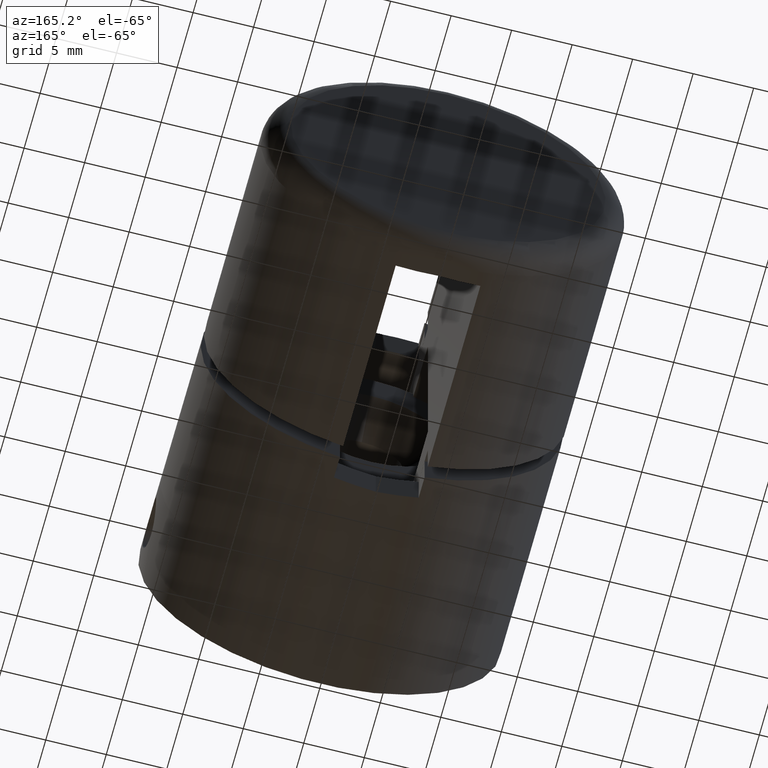
[diagram: clean part render]
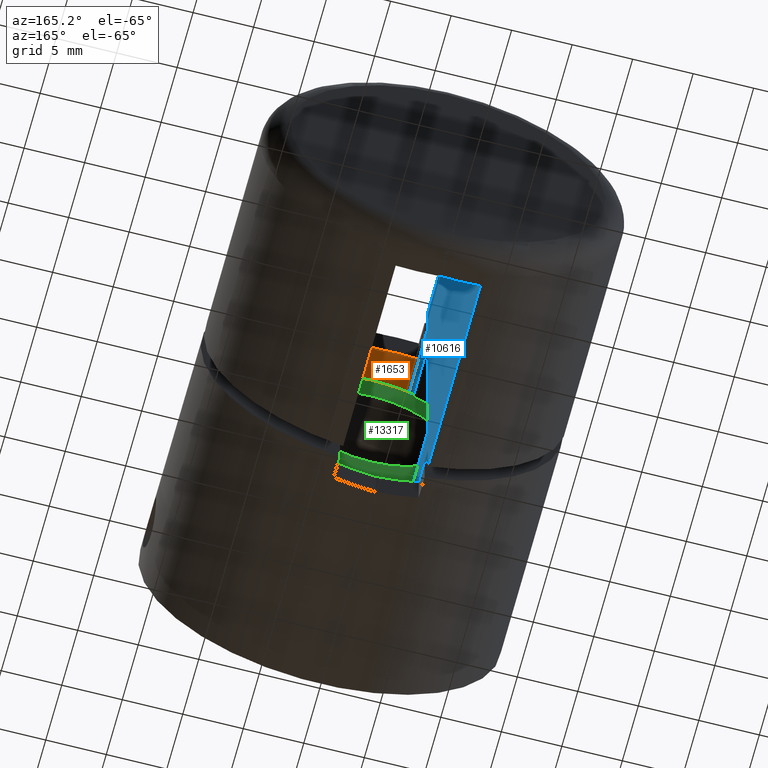
[diagram: same view with three faces highlighted in distinct colors, each labeled with its STEP entity id]
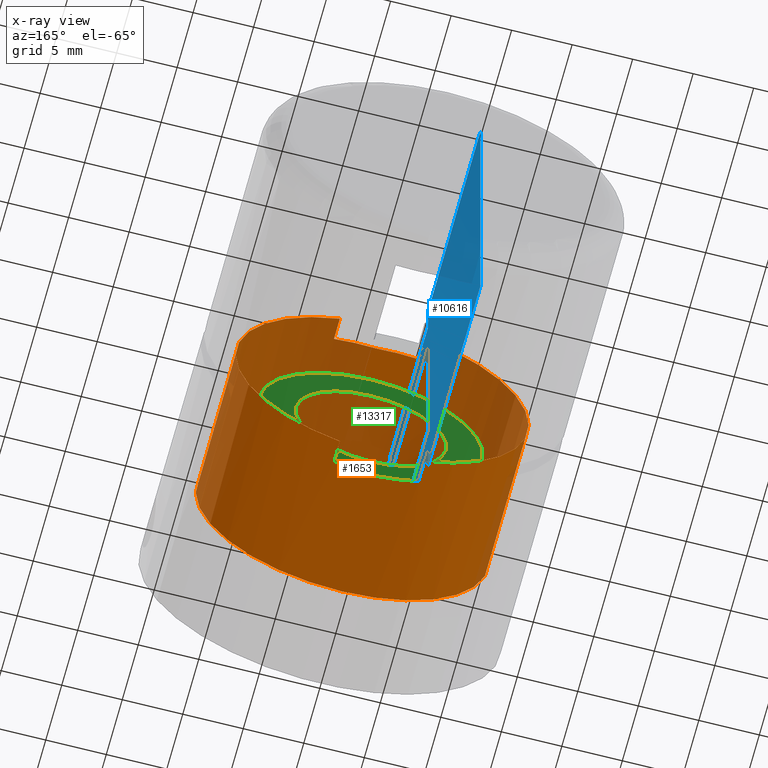
[diagram: x-ray of the same camera — body ghosted, the three highlighted faces saturated]
A machine part, auxiliary view with three faces highlighted in distinct colors.
The next image is the same camera in x-ray (body ghosted, the three faces saturated) — at least one of them is partly hidden behind the body in this view.
Their STEP definitions:

[orange] entity #1653 — the highlighted cylindrical surface (bore or boss wall) has radius 12.1 mm, axis along (0, 1, 0).
#14 = VERTEX_POINT ( 'NONE', #15678 ) ;
#166 = DIRECTION ( 'NONE',  ( -0.0000000000000000000, 1.000000000000000000, -0.0000000000000000000 ) ) ;
#210 = CARTESIAN_POINT ( 'NONE',  ( 3.500000000000036900, 1.846572772509342400, -11.58274578845627700 ) ) ;
#347 =( BOUNDED_CURVE ( )  B_SPLINE_CURVE ( 3, ( #3178, #6078, #3403, #2149 ),
 .UNSPECIFIED., .F., .F. ) 
 B_SPLINE_CURVE_WITH_KNOTS ( ( 4, 4 ),
 ( 4.712388980384689700, 5.005838708984176900 ),
 .UNSPECIFIED. ) 
 CURVE ( )  GEOMETRIC_REPRESENTATION_ITEM ( )  RATIONAL_B_SPLINE_CURVE ( ( 1.000000000000000000, 0.9928368027967422500, 0.9928368027967422500, 1.000000000000000000 ) ) 
 REPRESENTATION_ITEM ( '' )  );
#572 = LINE ( 'NONE', #15662, #9250 ) ;
#675 = ORIENTED_EDGE ( 'NONE', *, *, #2437, .F. ) ;
#874 = AXIS2_PLACEMENT_3D ( 'NONE', #15798, #2987, #10753 ) ;
#905 = CARTESIAN_POINT ( 'NONE',  ( 1.155557966632341500E-030, 2.029999999999997100, 12.10000000000014200 ) ) ;
#938 = DIRECTION ( 'NONE',  ( -7.395570986446916700E-032, 0.0000000000000000000, -1.000000000000000000 ) ) ;
#1343 = EDGE_CURVE ( 'NONE', #2490, #13560, #1385, .T. ) ;
#1385 =( BOUNDED_CURVE ( )  B_SPLINE_CURVE ( 3, ( #8759, #6071, #15063, #2355 ),
 .UNSPECIFIED., .F., .F. ) 
 B_SPLINE_CURVE_WITH_KNOTS ( ( 4, 4 ),
 ( 1.277346598195409500, 1.570796326794896600 ),
 .UNSPECIFIED. ) 
 CURVE ( )  GEOMETRIC_REPRESENTATION_ITEM ( )  RATIONAL_B_SPLINE_CURVE ( ( 1.000000000000000000, 0.9928368027967424700, 0.9928368027967424700, 1.000000000000000000 ) ) 
 REPRESENTATION_ITEM ( '' )  );
#1424 = CARTESIAN_POINT ( 'NONE',  ( -1.540743955509788700E-030, 2.029999999999997100, -12.10000000000015100 ) ) ;
#1561 = DIRECTION ( 'NONE',  ( 0.0000000000000000000, 1.000000000000000000, 0.0000000000000000000 ) ) ;
#1616 = ORIENTED_EDGE ( 'NONE', *, *, #10353, .F. ) ;
#1653 = ADVANCED_FACE ( 'NONE', ( #14460, #2341 ), #9031, .F. ) ;
#1793 = VERTEX_POINT ( 'NONE', #10190 ) ;
#1832 = ORIENTED_EDGE ( 'NONE', *, *, #4961, .F. ) ;
#2149 = CARTESIAN_POINT ( 'NONE',  ( -3.500000000000036900, 1.846572772509342400, -11.58274578845628300 ) ) ;
#2337 = VERTEX_POINT ( 'NONE', #12617 ) ;
#2341 = FACE_OUTER_BOUND ( 'NONE', #4540, .T. ) ;
#2355 = CARTESIAN_POINT ( 'NONE',  ( 1.155557966632341500E-030, 2.029999999999997100, 12.10000000000014200 ) ) ;
#2437 = EDGE_CURVE ( 'NONE', #2606, #1793, #14894, .T. ) ;
#2446 = ORIENTED_EDGE ( 'NONE', *, *, #15551, .F. ) ;
#2490 = VERTEX_POINT ( 'NONE', #16601 ) ;
#2606 = VERTEX_POINT ( 'NONE', #2659 ) ;
#2659 = CARTESIAN_POINT ( 'NONE',  ( -3.500000000000036900, 1.846572772509342400, -11.58274578845628300 ) ) ;
#2772 = VERTEX_POINT ( 'NONE', #13632 ) ;
#2850 = CARTESIAN_POINT ( 'NONE',  ( 1.187847200891070300, 1.967747566073715800, -12.10000000000011200 ) ) ;
#2987 = DIRECTION ( 'NONE',  ( 0.0000000000000000000, 1.000000000000000000, 0.0000000000000000000 ) ) ;
#3085 = LINE ( 'NONE', #15023, #6956 ) ;
#3178 = CARTESIAN_POINT ( 'NONE',  ( -1.540743955509788700E-030, 2.029999999999997100, -12.10000000000015100 ) ) ;
#3403 = CARTESIAN_POINT ( 'NONE',  ( -2.362931226161160600, 1.906164021838329300, -11.92633795400331400 ) ) ;
#3875 =( BOUNDED_CURVE ( )  B_SPLINE_CURVE ( 3, ( #905, #15059, #15114, #8597 ),
 .UNSPECIFIED., .F., .F. ) 
 B_SPLINE_CURVE_WITH_KNOTS ( ( 4, 4 ),
 ( 4.712388980384689700, 5.005838708984176900 ),
 .UNSPECIFIED. ) 
 CURVE ( )  GEOMETRIC_REPRESENTATION_ITEM ( )  RATIONAL_B_SPLINE_CURVE ( ( 1.000000000000000000, 0.9928368027967422500, 0.9928368027967422500, 1.000000000000000000 ) ) 
 REPRESENTATION_ITEM ( '' )  );
#4012 = CIRCLE ( 'NONE', #5203, 12.10000000000011200 ) ;
#4019 = ORIENTED_EDGE ( 'NONE', *, *, #10012, .T. ) ;
#4143 = EDGE_CURVE ( 'NONE', #13560, #14, #3875, .T. ) ;
#4540 = EDGE_LOOP ( 'NONE', ( #4019 ) ) ;
#4934 = CARTESIAN_POINT ( 'NONE',  ( -1.540743955509788700E-030, 2.029999999999997100, -12.10000000000015100 ) ) ;
#4961 = EDGE_CURVE ( 'NONE', #12112, #16475, #15717, .T. ) ;
#5203 = AXIS2_PLACEMENT_3D ( 'NONE', #6887, #15887, #13316 ) ;
#5282 = CARTESIAN_POINT ( 'NONE',  ( 8.948640893600852000E-031, 12.52999999999999900, 12.10000000000011200 ) ) ;
#5338 = EDGE_LOOP ( 'NONE', ( #14057, #6490, #675, #13604, #2446, #1832, #1616, #16508, #9168, #5528 ) ) ;
#5512 = DIRECTION ( 'NONE',  ( -0.0000000000000000000, 1.000000000000000000, -0.0000000000000000000 ) ) ;
#5528 = ORIENTED_EDGE ( 'NONE', *, *, #1343, .F. ) ;
#5832 = CIRCLE ( 'NONE', #15668, 12.10000000000011200 ) ;
#6029 = DIRECTION ( 'NONE',  ( 0.0000000000000000000, -1.000000000000000000, 0.0000000000000000000 ) ) ;
#6071 = CARTESIAN_POINT ( 'NONE',  ( -2.362931226161162400, 1.906164021838329300, 11.92633795400331400 ) ) ;
#6078 = CARTESIAN_POINT ( 'NONE',  ( -1.187847200891069400, 1.967747566073715800, -12.10000000000011200 ) ) ;
#6490 = ORIENTED_EDGE ( 'NONE', *, *, #6613, .F. ) ;
#6613 = EDGE_CURVE ( 'NONE', #1793, #2337, #5832, .T. ) ;
#6887 = CARTESIAN_POINT ( 'NONE',  ( 0.0000000000000000000, 0.0000000000000000000, 0.0000000000000000000 ) ) ;
#6956 = VECTOR ( 'NONE', #8814, 1000.000000000000000 ) ;
#8037 = CARTESIAN_POINT ( 'NONE',  ( 0.0000000000000000000, 0.0000000000000000000, 0.0000000000000000000 ) ) ;
#8063 = CARTESIAN_POINT ( 'NONE',  ( 3.500000000000039500, 12.52999999999999900, -11.58274578845627700 ) ) ;
#8597 = CARTESIAN_POINT ( 'NONE',  ( 3.500000000000039500, 1.846572772509342400, 11.58274578845627700 ) ) ;
#8759 = CARTESIAN_POINT ( 'NONE',  ( -3.500000000000036900, 1.846572772509342400, 11.58274578845627400 ) ) ;
#8814 = DIRECTION ( 'NONE',  ( 0.0000000000000000000, -1.000000000000000000, 0.0000000000000000000 ) ) ;
#9031 = CYLINDRICAL_SURFACE ( 'NONE', #16303, 12.10000000000011200 ) ;
#9129 = EDGE_CURVE ( 'NONE', #15803, #2606, #347, .T. ) ;
#9168 = ORIENTED_EDGE ( 'NONE', *, *, #4143, .F. ) ;
#9250 = VECTOR ( 'NONE', #166, 1000.000000000000000 ) ;
#9258 = DIRECTION ( 'NONE',  ( 7.395570986446916700E-032, 0.0000000000000000000, 1.000000000000000000 ) ) ;
#9291 = CARTESIAN_POINT ( 'NONE',  ( 2.362931226161159700, 1.906164021838329300, -11.92633795400331600 ) ) ;
#9437 = VECTOR ( 'NONE', #6029, 1000.000000000000000 ) ;
#9767 = DIRECTION ( 'NONE',  ( 0.0000000000000000000, -1.000000000000000000, 0.0000000000000000000 ) ) ;
#10012 = EDGE_CURVE ( 'NONE', #15786, #15786, #15112, .T. ) ;
#10190 = CARTESIAN_POINT ( 'NONE',  ( -3.500000000000036400, 0.0000000000000000000, -11.58274578845627700 ) ) ;
#10353 = EDGE_CURVE ( 'NONE', #2772, #12112, #4012, .T. ) ;
#10381 =( BOUNDED_CURVE ( )  B_SPLINE_CURVE ( 3, ( #210, #9291, #2850, #1424 ),
 .UNSPECIFIED., .F., .T. ) 
 B_SPLINE_CURVE_WITH_KNOTS ( ( 4, 4 ),
 ( 1.277346598195409700, 1.570796326794896600 ),
 .UNSPECIFIED. ) 
 CURVE ( )  GEOMETRIC_REPRESENTATION_ITEM ( )  RATIONAL_B_SPLINE_CURVE ( ( 1.000000000000000000, 0.9928368027967424700, 0.9928368027967424700, 1.000000000000000000 ) ) 
 REPRESENTATION_ITEM ( '' )  );
#10753 = DIRECTION ( 'NONE',  ( 7.395570986446916700E-032, 0.0000000000000000000, 1.000000000000000000 ) ) ;
#11663 = VECTOR ( 'NONE', #5512, 1000.000000000000000 ) ;
#12078 = CARTESIAN_POINT ( 'NONE',  ( 3.500000000000036900, 1.846572772509342400, -11.58274578845627700 ) ) ;
#12112 = VERTEX_POINT ( 'NONE', #14596 ) ;
#12617 = CARTESIAN_POINT ( 'NONE',  ( -3.500000000000036400, 0.0000000000000000000, 11.58274578845627700 ) ) ;
#12740 = CARTESIAN_POINT ( 'NONE',  ( 1.155557966632341500E-030, 2.029999999999997100, 12.10000000000014200 ) ) ;
#13316 = DIRECTION ( 'NONE',  ( 7.395570986446916700E-032, 0.0000000000000000000, 1.000000000000000000 ) ) ;
#13560 = VERTEX_POINT ( 'NONE', #12740 ) ;
#13604 = ORIENTED_EDGE ( 'NONE', *, *, #9129, .F. ) ;
#13632 = CARTESIAN_POINT ( 'NONE',  ( 3.500000000000036400, 0.0000000000000000000, 11.58274578845627700 ) ) ;
#13878 = CARTESIAN_POINT ( 'NONE',  ( -3.500000000000039500, 12.52999999999999900, -11.58274578845627700 ) ) ;
#14057 = ORIENTED_EDGE ( 'NONE', *, *, #15171, .F. ) ;
#14460 = FACE_OUTER_BOUND ( 'NONE', #5338, .T. ) ;
#14596 = CARTESIAN_POINT ( 'NONE',  ( 3.500000000000039500, 0.0000000000000000000, -11.58274578845627700 ) ) ;
#14829 = CARTESIAN_POINT ( 'NONE',  ( 0.0000000000000000000, 12.52999999999999900, 0.0000000000000000000 ) ) ;
#14894 = LINE ( 'NONE', #13878, #9437 ) ;
#15023 = CARTESIAN_POINT ( 'NONE',  ( 3.500000000000039500, 12.52999999999999900, 11.58274578845627700 ) ) ;
#15059 = CARTESIAN_POINT ( 'NONE',  ( 1.187847200891069400, 1.967747566073715800, 12.10000000000011200 ) ) ;
#15063 = CARTESIAN_POINT ( 'NONE',  ( -1.187847200891071000, 1.967747566073715800, 12.10000000000011200 ) ) ;
#15112 = CIRCLE ( 'NONE', #874, 12.10000000000011200 ) ;
#15114 = CARTESIAN_POINT ( 'NONE',  ( 2.362931226161160600, 1.906164021838329300, 11.92633795400331400 ) ) ;
#15171 = EDGE_CURVE ( 'NONE', #2337, #2490, #572, .T. ) ;
#15551 = EDGE_CURVE ( 'NONE', #16475, #15803, #10381, .T. ) ;
#15662 = CARTESIAN_POINT ( 'NONE',  ( -3.500000000000039500, 12.52999999999999900, 11.58274578845627700 ) ) ;
#15668 = AXIS2_PLACEMENT_3D ( 'NONE', #8037, #1561, #9258 ) ;
#15678 = CARTESIAN_POINT ( 'NONE',  ( 3.500000000000039500, 1.846572772509342400, 11.58274578845627700 ) ) ;
#15717 = LINE ( 'NONE', #8063, #11663 ) ;
#15778 = EDGE_CURVE ( 'NONE', #14, #2772, #3085, .T. ) ;
#15786 = VERTEX_POINT ( 'NONE', #5282 ) ;
#15798 = CARTESIAN_POINT ( 'NONE',  ( 0.0000000000000000000, 12.52999999999999900, 0.0000000000000000000 ) ) ;
#15803 = VERTEX_POINT ( 'NONE', #4934 ) ;
#15887 = DIRECTION ( 'NONE',  ( 0.0000000000000000000, 1.000000000000000000, 0.0000000000000000000 ) ) ;
#16303 = AXIS2_PLACEMENT_3D ( 'NONE', #14829, #9767, #938 ) ;
#16475 = VERTEX_POINT ( 'NONE', #12078 ) ;
#16508 = ORIENTED_EDGE ( 'NONE', *, *, #15778, .F. ) ;
#16601 = CARTESIAN_POINT ( 'NONE',  ( -3.500000000000036900, 1.846572772509342400, 11.58274578845627400 ) ) ;

[blue] entity #10616 — the highlighted planar face has unit normal (-1, 0, -0).
#16 = DIRECTION ( 'NONE',  ( 1.228762462150238500E-016, 0.0000000000000000000, 1.000000000000000000 ) ) ;
#426 = DIRECTION ( 'NONE',  ( -0.0000000000000000000, 1.000000000000000000, -0.0000000000000000000 ) ) ;
#550 = LINE ( 'NONE', #11666, #3751 ) ;
#614 = ORIENTED_EDGE ( 'NONE', *, *, #14627, .T. ) ;
#728 = EDGE_CURVE ( 'NONE', #10503, #2664, #8458, .T. ) ;
#789 = FACE_OUTER_BOUND ( 'NONE', #15259, .T. ) ;
#850 = DIRECTION ( 'NONE',  ( 0.0000000000000000000, 1.000000000000000000, 0.0000000000000000000 ) ) ;
#957 = LINE ( 'NONE', #13611, #11056 ) ;
#1109 = ORIENTED_EDGE ( 'NONE', *, *, #1569, .T. ) ;
#1514 = CARTESIAN_POINT ( 'NONE',  ( -3.500000000000003100, -39.25695324215582400, -29.99999999999998900 ) ) ;
#1532 = VERTEX_POINT ( 'NONE', #1618 ) ;
#1556 = LINE ( 'NONE', #11529, #2365 ) ;
#1569 = EDGE_CURVE ( 'NONE', #2895, #14065, #7033, .T. ) ;
#1579 = CARTESIAN_POINT ( 'NONE',  ( -3.500000000000000900, 33.68000000000000000, -11.53050302458656700 ) ) ;
#1592 = VERTEX_POINT ( 'NONE', #5652 ) ;
#1618 = CARTESIAN_POINT ( 'NONE',  ( -3.500000000000000400, 21.14999999999999900, -8.019507466172722600 ) ) ;
#1665 = ORIENTED_EDGE ( 'NONE', *, *, #2963, .F. ) ;
#1723 = CARTESIAN_POINT ( 'NONE',  ( -3.499999999999998700, 21.14999999999999900, 14.58595214581482000 ) ) ;
#1981 = LINE ( 'NONE', #13319, #11854 ) ;
#2058 = DIRECTION ( 'NONE',  ( 0.0000000000000000000, 1.000000000000000000, 0.0000000000000000000 ) ) ;
#2304 = EDGE_CURVE ( 'NONE', #12154, #14065, #9007, .T. ) ;
#2365 = VECTOR ( 'NONE', #7617, 1000.000000000000000 ) ;
#2664 = VERTEX_POINT ( 'NONE', #9598 ) ;
#2872 = EDGE_CURVE ( 'NONE', #9395, #1532, #3977, .T. ) ;
#2895 = VERTEX_POINT ( 'NONE', #11591 ) ;
#2963 = EDGE_CURVE ( 'NONE', #15233, #1532, #550, .T. ) ;
#2973 = LINE ( 'NONE', #8112, #16113 ) ;
#3400 = CARTESIAN_POINT ( 'NONE',  ( -3.499999999999999600, 33.68000000000000000, 4.300668617525834600E-016 ) ) ;
#3751 = VECTOR ( 'NONE', #9036, 1000.000000000000000 ) ;
#3977 = LINE ( 'NONE', #8752, #8824 ) ;
#4015 = LINE ( 'NONE', #9756, #9269 ) ;
#4120 = DIRECTION ( 'NONE',  ( -1.000000000000000000, 0.0000000000000000000, 1.228762462150238500E-016 ) ) ;
#4125 = DIRECTION ( 'NONE',  ( -0.0000000000000000000, -1.000000000000000000, -0.0000000000000000000 ) ) ;
#4204 = VECTOR ( 'NONE', #11719, 1000.000000000000000 ) ;
#4415 = CARTESIAN_POINT ( 'NONE',  ( -3.499999999999998700, 21.14999999999999900, 11.53050302458657100 ) ) ;
#4434 = CARTESIAN_POINT ( 'NONE',  ( -3.500000000000001300, 33.01406578003961600, -11.18138619586769300 ) ) ;
#5330 = AXIS2_PLACEMENT_3D ( 'NONE', #1514, #4120, #16 ) ;
#5652 = CARTESIAN_POINT ( 'NONE',  ( -3.499999999999998700, 33.68000000000000000, 8.019507466172722600 ) ) ;
#5819 = LINE ( 'NONE', #7522, #10038 ) ;
#6042 = CARTESIAN_POINT ( 'NONE',  ( -3.500000000000000900, 21.14999999999999900, -11.53050302458656900 ) ) ;
#6122 = CARTESIAN_POINT ( 'NONE',  ( -3.499999999999998200, 33.68000000000000000, 10.48105433627746300 ) ) ;
#6153 = EDGE_CURVE ( 'NONE', #12598, #10070, #1981, .T. ) ;
#6156 = EDGE_CURVE ( 'NONE', #12598, #2664, #957, .T. ) ;
#6436 = CARTESIAN_POINT ( 'NONE',  ( -3.499999999999998700, 21.14999999999999900, 8.019507466172722600 ) ) ;
#7033 = LINE ( 'NONE', #13516, #10031 ) ;
#7372 = CARTESIAN_POINT ( 'NONE',  ( -3.499999999999998200, 32.68000000000002800, 11.53050302458656700 ) ) ;
#7522 = CARTESIAN_POINT ( 'NONE',  ( -3.499999999999998700, 21.14999999999999900, 14.58595214581482000 ) ) ;
#7525 = CARTESIAN_POINT ( 'NONE',  ( -3.500000000000000900, 33.68000000000000000, -10.48105433627746500 ) ) ;
#7617 = DIRECTION ( 'NONE',  ( -0.0000000000000000000, -0.0000000000000000000, 1.000000000000000000 ) ) ;
#7659 = LINE ( 'NONE', #15452, #4204 ) ;
#7723 = B_SPLINE_CURVE_WITH_KNOTS ( 'NONE', 3,
 ( #12130, #4434, #10006, #13425 ),
 .UNSPECIFIED., .F., .F.,
 ( 4, 4 ),
 ( 1.734723475976807100E-018, 0.001449600824155962100 ),
 .UNSPECIFIED. ) ;
#7791 = VECTOR ( 'NONE', #9993, 1000.000000000000000 ) ;
#7851 = DIRECTION ( 'NONE',  ( 0.0000000000000000000, -1.000000000000000000, 0.0000000000000000000 ) ) ;
#8112 = CARTESIAN_POINT ( 'NONE',  ( -3.499999999999998700, -3.598737341529170600, 8.019507466172722600 ) ) ;
#8253 = ORIENTED_EDGE ( 'NONE', *, *, #8802, .T. ) ;
#8263 = CARTESIAN_POINT ( 'NONE',  ( -3.500000000000000900, 32.68000000000002800, -11.53050302458656700 ) ) ;
#8458 = B_SPLINE_CURVE_WITH_KNOTS ( 'NONE', 3,
 ( #6122, #15066, #15121, #7372 ),
 .UNSPECIFIED., .F., .F.,
 ( 4, 4 ),
 ( 1.734723475976807100E-018, 0.001449600824155962100 ),
 .UNSPECIFIED. ) ;
#8610 = ORIENTED_EDGE ( 'NONE', *, *, #6156, .F. ) ;
#8621 = ORIENTED_EDGE ( 'NONE', *, *, #728, .T. ) ;
#8647 = VECTOR ( 'NONE', #4125, 1000.000000000000000 ) ;
#8752 = CARTESIAN_POINT ( 'NONE',  ( -3.500000000000000400, -3.598737341529170600, -8.019507466172722600 ) ) ;
#8786 = CARTESIAN_POINT ( 'NONE',  ( -3.499999999999999600, 4.683427227490657400, -14.58595214581482000 ) ) ;
#8802 = EDGE_CURVE ( 'NONE', #1592, #10503, #11181, .T. ) ;
#8824 = VECTOR ( 'NONE', #7851, 1000.000000000000000 ) ;
#8906 = ORIENTED_EDGE ( 'NONE', *, *, #11183, .T. ) ;
#9007 = LINE ( 'NONE', #1579, #8647 ) ;
#9036 = DIRECTION ( 'NONE',  ( -1.228762462150238500E-016, 0.0000000000000000000, -1.000000000000000000 ) ) ;
#9269 = VECTOR ( 'NONE', #9818, 1000.000000000000000 ) ;
#9395 = VERTEX_POINT ( 'NONE', #11866 ) ;
#9598 = CARTESIAN_POINT ( 'NONE',  ( -3.499999999999998200, 32.68000000000002800, 11.53050302458656700 ) ) ;
#9705 = ORIENTED_EDGE ( 'NONE', *, *, #14028, .F. ) ;
#9756 = CARTESIAN_POINT ( 'NONE',  ( -3.499999999999998700, 21.14999999999999900, -14.58595214581482000 ) ) ;
#9818 = DIRECTION ( 'NONE',  ( -0.0000000000000000000, -1.000000000000000000, -0.0000000000000000000 ) ) ;
#9993 = DIRECTION ( 'NONE',  ( 1.228762462150238500E-016, -0.0000000000000000000, 1.000000000000000000 ) ) ;
#10006 = CARTESIAN_POINT ( 'NONE',  ( -3.500000000000000400, 33.34747042618929000, -10.83163469515321100 ) ) ;
#10031 = VECTOR ( 'NONE', #13393, 1000.000000000000000 ) ;
#10038 = VECTOR ( 'NONE', #850, 1000.000000000000000 ) ;
#10070 = VERTEX_POINT ( 'NONE', #1723 ) ;
#10503 = VERTEX_POINT ( 'NONE', #11174 ) ;
#10616 = ADVANCED_FACE ( 'NONE', ( #789 ), #15695, .F. ) ;
#10882 = ORIENTED_EDGE ( 'NONE', *, *, #11726, .F. ) ;
#11051 = ORIENTED_EDGE ( 'NONE', *, *, #15006, .F. ) ;
#11056 = VECTOR ( 'NONE', #2058, 1000.000000000000000 ) ;
#11174 = CARTESIAN_POINT ( 'NONE',  ( -3.499999999999998200, 33.68000000000000000, 10.48105433627746300 ) ) ;
#11181 = LINE ( 'NONE', #3400, #7791 ) ;
#11183 = EDGE_CURVE ( 'NONE', #15233, #1592, #2973, .T. ) ;
#11425 = VERTEX_POINT ( 'NONE', #7525 ) ;
#11529 = CARTESIAN_POINT ( 'NONE',  ( -3.499999999999999600, 4.683427227490657400, -15.00000000000000000 ) ) ;
#11591 = CARTESIAN_POINT ( 'NONE',  ( -3.499999999999998700, 21.14999999999999900, -14.58595214581482000 ) ) ;
#11666 = CARTESIAN_POINT ( 'NONE',  ( -3.500000000000003100, 21.15000000000000200, -29.99999999999998900 ) ) ;
#11719 = DIRECTION ( 'NONE',  ( 1.228762462150238500E-016, -0.0000000000000000000, 1.000000000000000000 ) ) ;
#11726 = EDGE_CURVE ( 'NONE', #13701, #10070, #5819, .T. ) ;
#11854 = VECTOR ( 'NONE', #16046, 1000.000000000000000 ) ;
#11866 = CARTESIAN_POINT ( 'NONE',  ( -3.500000000000000400, 33.68000000000000000, -8.019507466172722600 ) ) ;
#12130 = CARTESIAN_POINT ( 'NONE',  ( -3.500000000000000900, 32.68000000000002800, -11.53050302458656700 ) ) ;
#12154 = VERTEX_POINT ( 'NONE', #8263 ) ;
#12220 = VERTEX_POINT ( 'NONE', #8786 ) ;
#12465 = ORIENTED_EDGE ( 'NONE', *, *, #2872, .T. ) ;
#12598 = VERTEX_POINT ( 'NONE', #4415 ) ;
#13319 = CARTESIAN_POINT ( 'NONE',  ( -3.499999999999998700, 21.14999999999999900, -15.00000000000000000 ) ) ;
#13393 = DIRECTION ( 'NONE',  ( -0.0000000000000000000, -0.0000000000000000000, 1.000000000000000000 ) ) ;
#13425 = CARTESIAN_POINT ( 'NONE',  ( -3.500000000000000900, 33.68000000000000000, -10.48105433627746500 ) ) ;
#13516 = CARTESIAN_POINT ( 'NONE',  ( -3.499999999999998700, 21.14999999999999900, -15.00000000000000000 ) ) ;
#13611 = CARTESIAN_POINT ( 'NONE',  ( -3.499999999999998200, 33.68000000000000000, 11.53050302458656700 ) ) ;
#13701 = VERTEX_POINT ( 'NONE', #15670 ) ;
#14028 = EDGE_CURVE ( 'NONE', #2895, #12220, #4015, .T. ) ;
#14065 = VERTEX_POINT ( 'NONE', #6042 ) ;
#14237 = ORIENTED_EDGE ( 'NONE', *, *, #2304, .F. ) ;
#14627 = EDGE_CURVE ( 'NONE', #11425, #9395, #7659, .T. ) ;
#14826 = ORIENTED_EDGE ( 'NONE', *, *, #6153, .T. ) ;
#15006 = EDGE_CURVE ( 'NONE', #12220, #13701, #1556, .T. ) ;
#15066 = CARTESIAN_POINT ( 'NONE',  ( -3.499999999999998200, 33.34747042618929000, 10.83163469515321400 ) ) ;
#15121 = CARTESIAN_POINT ( 'NONE',  ( -3.499999999999997800, 33.01406578003961600, 11.18138619586769700 ) ) ;
#15233 = VERTEX_POINT ( 'NONE', #6436 ) ;
#15259 = EDGE_LOOP ( 'NONE', ( #1665, #8906, #8253, #8621, #8610, #14826, #10882, #11051, #9705, #1109, #14237, #15700, #614, #12465 ) ) ;
#15452 = CARTESIAN_POINT ( 'NONE',  ( -3.499999999999999600, 33.68000000000000000, 4.300668617525834600E-016 ) ) ;
#15670 = CARTESIAN_POINT ( 'NONE',  ( -3.499999999999999600, 4.683427227490657400, 14.58595214581482000 ) ) ;
#15695 = PLANE ( 'NONE',  #5330 ) ;
#15700 = ORIENTED_EDGE ( 'NONE', *, *, #16546, .T. ) ;
#16046 = DIRECTION ( 'NONE',  ( -0.0000000000000000000, -0.0000000000000000000, 1.000000000000000000 ) ) ;
#16113 = VECTOR ( 'NONE', #426, 1000.000000000000000 ) ;
#16546 = EDGE_CURVE ( 'NONE', #12154, #11425, #7723, .T. ) ;

[green] entity #13317 — the highlighted planar face has unit normal (0, 1, 0).
#292 = FACE_BOUND ( 'NONE', #6142, .T. ) ;
#557 = CARTESIAN_POINT ( 'NONE',  ( 0.0000000000000000000, 16.00000000000000000, 0.0000000000000000000 ) ) ;
#1225 = VERTEX_POINT ( 'NONE', #15305 ) ;
#1576 = EDGE_CURVE ( 'NONE', #4269, #4269, #9228, .T. ) ;
#1691 = AXIS2_PLACEMENT_3D ( 'NONE', #10272, #7752, #5094 ) ;
#2992 = EDGE_CURVE ( 'NONE', #1225, #1225, #15078, .T. ) ;
#3658 = DIRECTION ( 'NONE',  ( 0.0000000000000000000, -0.0000000000000000000, 1.000000000000000000 ) ) ;
#4269 = VERTEX_POINT ( 'NONE', #9052 ) ;
#5094 = DIRECTION ( 'NONE',  ( 0.0000000000000000000, 0.0000000000000000000, 1.000000000000000000 ) ) ;
#6020 = FACE_OUTER_BOUND ( 'NONE', #9616, .T. ) ;
#6142 = EDGE_LOOP ( 'NONE', ( #14548 ) ) ;
#6332 = AXIS2_PLACEMENT_3D ( 'NONE', #12599, #6387, #3658 ) ;
#6387 = DIRECTION ( 'NONE',  ( 0.0000000000000000000, 1.000000000000000000, 0.0000000000000000000 ) ) ;
#7013 = DIRECTION ( 'NONE',  ( 0.0000000000000000000, 1.000000000000000000, 0.0000000000000000000 ) ) ;
#7752 = DIRECTION ( 'NONE',  ( -0.0000000000000000000, 1.000000000000000000, -0.0000000000000000000 ) ) ;
#7883 = AXIS2_PLACEMENT_3D ( 'NONE', #557, #7013, #9474 ) ;
#9052 = CARTESIAN_POINT ( 'NONE',  ( 0.0000000000000000000, 16.00000000000000000, 9.250000000000001800 ) ) ;
#9228 = CIRCLE ( 'NONE', #7883, 9.250000000000001800 ) ;
#9322 = ORIENTED_EDGE ( 'NONE', *, *, #1576, .T. ) ;
#9474 = DIRECTION ( 'NONE',  ( 0.0000000000000000000, 0.0000000000000000000, 1.000000000000000000 ) ) ;
#9616 = EDGE_LOOP ( 'NONE', ( #9322 ) ) ;
#10272 = CARTESIAN_POINT ( 'NONE',  ( 0.0000000000000000000, 16.00000000000000000, 0.0000000000000000000 ) ) ;
#12599 = CARTESIAN_POINT ( 'NONE',  ( 0.0000000000000000000, 16.00000000000000000, 0.0000000000000000000 ) ) ;
#13317 = ADVANCED_FACE ( 'NONE', ( #292, #6020 ), #13975, .T. ) ;
#13975 = PLANE ( 'NONE',  #6332 ) ;
#14548 = ORIENTED_EDGE ( 'NONE', *, *, #2992, .F. ) ;
#15078 = CIRCLE ( 'NONE', #1691, 6.250000000000000000 ) ;
#15305 = CARTESIAN_POINT ( 'NONE',  ( 0.0000000000000000000, 16.00000000000000000, 6.250000000000000000 ) ) ;